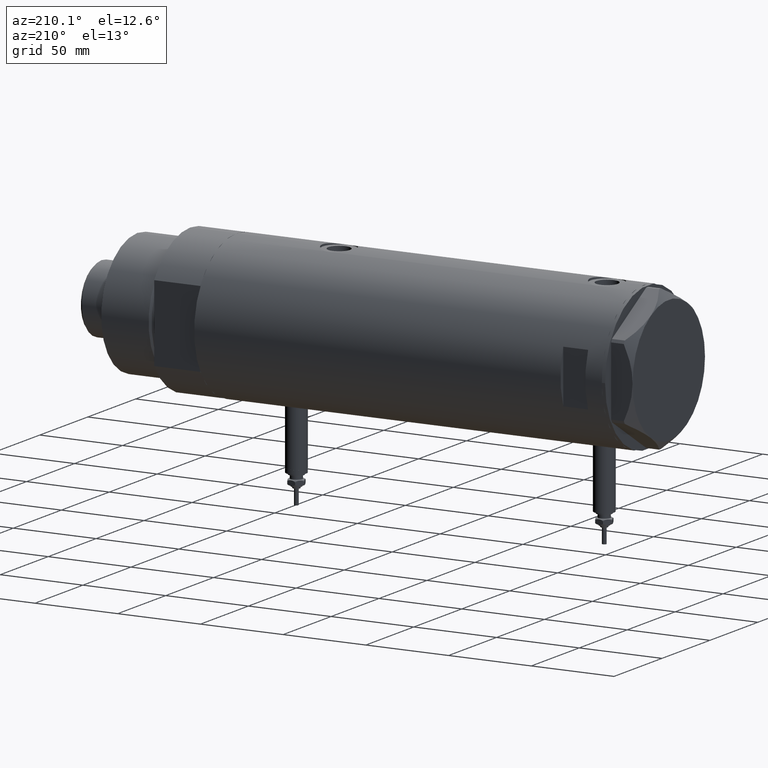
[diagram: clean part render]
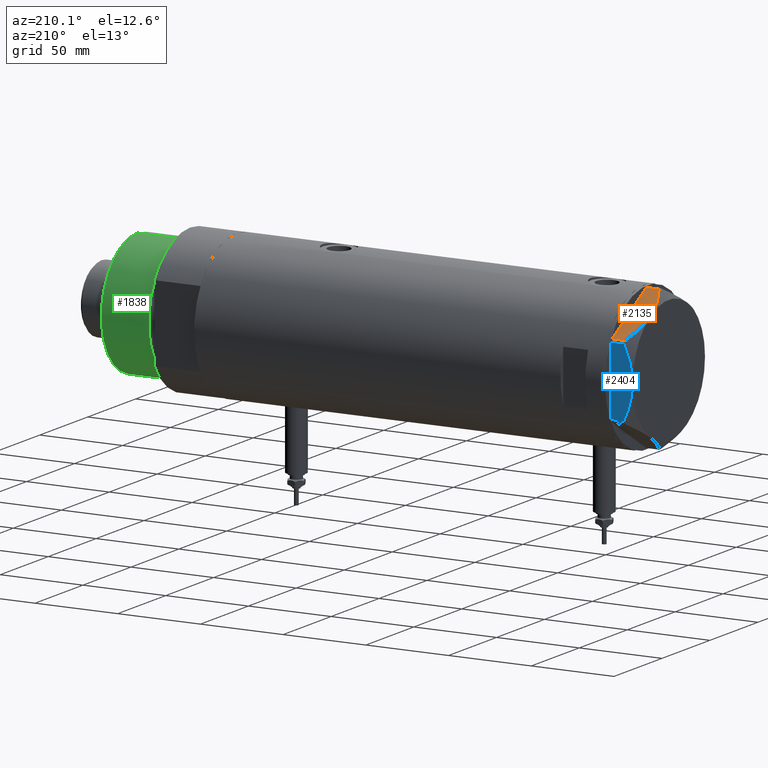
[diagram: same view with three faces highlighted in distinct colors, each labeled with its STEP entity id]
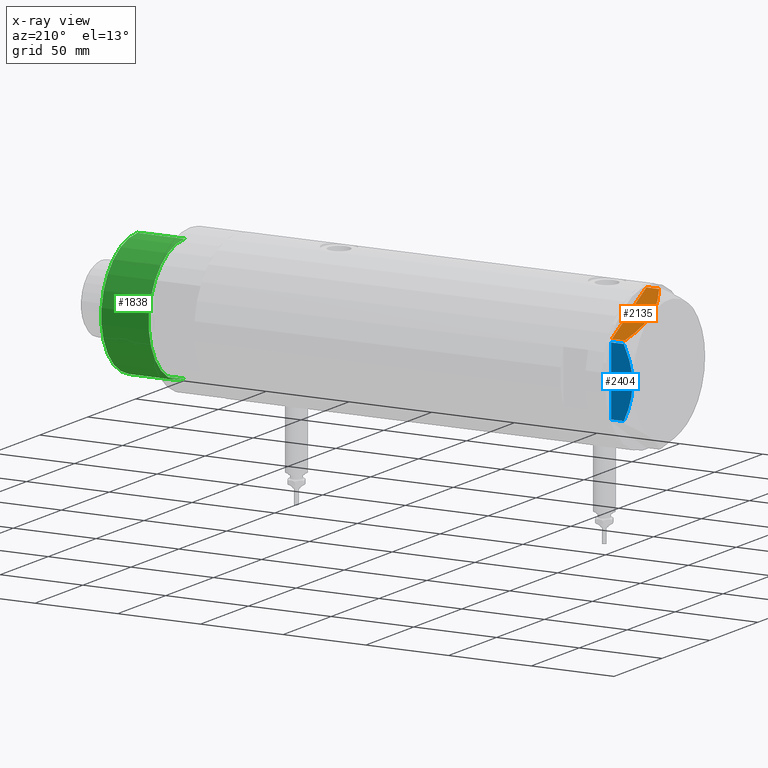
[diagram: x-ray of the same camera — body ghosted, the three highlighted faces saturated]
A machine part, auxiliary view with three faces highlighted in distinct colors.
The next image is the same camera in x-ray (body ghosted, the three faces saturated) — at least one of them is partly hidden behind the body in this view.
Their STEP definitions:

[orange] entity #2135 — the highlighted planar face has unit normal (-0, -0.5, -0.866).
#91 = VERTEX_POINT ( 'NONE', #3062 ) ;
#151 = VECTOR ( 'NONE', #5653, 1000.000000000000114 ) ;
#169 = LINE ( 'NONE', #1493, #4809 ) ;
#212 = CARTESIAN_POINT ( 'NONE',  ( 21.96683860604023764, -30.90738514137435544, 12.87183830165162846 ) ) ;
#297 = CARTESIAN_POINT ( 'NONE',  ( 36.78005154775924268, -22.35497266190964538, 7.709124142618180464 ) ) ;
#326 = CARTESIAN_POINT ( 'NONE',  ( 18.87499999999998579, -32.69245899286256218, 13.00000000000000000 ) ) ;
#359 = CARTESIAN_POINT ( 'NONE',  ( 15.73313492417777937, -34.50641564014599538, 12.83692902789789514 ) ) ;
#491 = EDGE_CURVE ( 'NONE', #1027, #2406, #3012, .T. ) ;
#704 = B_SPLINE_CURVE_WITH_KNOTS ( 'NONE', 3,
 ( #4384, #752, #212, #2604, #2146, #5837, #4472, #2574, #1661, #1572, #5864, #297 ),
 .UNSPECIFIED., .F., .F.,
 ( 4, 2, 2, 2, 2, 4 ),
 ( 0.02259271946349904886, 0.02789559809390703207, 0.03319847672431501528, 0.03584991603951900863, 0.03850135535472300197, 0.04380423398513099559 ),
 .UNSPECIFIED. ) ;
#752 = CARTESIAN_POINT ( 'NONE',  ( 20.42709085942840730, -31.79635891736482023, 12.99999999999999645 ) ) ;
#838 = CARTESIAN_POINT ( 'NONE',  ( 18.09346002772999995, -33.14368130623511632, 12.99999999999999822 ) ) ;
#1027 = VERTEX_POINT ( 'NONE', #4323 ) ;
#1042 = VERTEX_POINT ( 'NONE', #326 ) ;
#1398 = AXIS2_PLACEMENT_3D ( 'NONE', #1606, #3465, #2542 ) ;
#1493 = CARTESIAN_POINT ( 'NONE',  ( 0.9699484522385762864, -43.02994532381674020, 13.00000000000000000 ) ) ;
#1572 = CARTESIAN_POINT ( 'NONE',  ( 33.94595399727396057, -23.99123964559198541, 9.210778219601310823 ) ) ;
#1606 = CARTESIAN_POINT ( 'NONE',  ( -4.107234936485837051E-15, -43.58994532381674247, 13.00000000000000000 ) ) ;
#1634 = FACE_OUTER_BOUND ( 'NONE', #1777, .T. ) ;
#1661 = CARTESIAN_POINT ( 'NONE',  ( 31.76569840794746824, -25.25001079699180551, 10.17879673963500942 ) ) ;
#1713 = ORIENTED_EDGE ( 'NONE', *, *, #4267, .T. ) ;
#1777 = EDGE_LOOP ( 'NONE', ( #3086, #1713, #2746, #2215, #5715 ) ) ;
#1831 = CARTESIAN_POINT ( 'NONE',  ( 11.12401302890051191, -37.16749340711212568, 11.98878493998158312 ) ) ;
#1874 = LINE ( 'NONE', #3791, #151 ) ;
#2106 = EDGE_CURVE ( 'NONE', #91, #1027, #1874, .T. ) ;
#2135 = ADVANCED_FACE ( 'NONE', ( #1634 ), #3920, .F. ) ;
#2146 = CARTESIAN_POINT ( 'NONE',  ( 26.54034249379520460, -28.26687144063922830, 12.01242981158384993 ) ) ;
#2215 = ORIENTED_EDGE ( 'NONE', *, *, #491, .T. ) ;
#2227 = B_SPLINE_CURVE_WITH_KNOTS ( 'NONE', 3,
 ( #3686, #6006, #4560, #1831, #5527, #3234, #359, #5499, #838, #4977 ),
 .UNSPECIFIED., .F., .F.,
 ( 4, 2, 2, 2, 4 ),
 ( 0.001231023567492486306, 0.01191187151549576335, 0.01725229548949740177, 0.01992250747649822532, 0.02259271946349904886 ),
 .UNSPECIFIED. ) ;
#2406 = VERTEX_POINT ( 'NONE', #4172 ) ;
#2542 = DIRECTION ( 'NONE',  ( -0.8660254037844388186, -0.4999999999999997224, 0.000000000000000000 ) ) ;
#2574 = CARTESIAN_POINT ( 'NONE',  ( 31.03235934281740427, -25.67340430365192105, 10.48240969891324070 ) ) ;
#2604 = CARTESIAN_POINT ( 'NONE',  ( 25.02345495740816972, -29.14264686810265914, 12.37795492145971821 ) ) ;
#2719 = CARTESIAN_POINT ( 'NONE',  ( 0.9699484522384296259, -43.02994532381681836, 7.709124142616899711 ) ) ;
#2746 = ORIENTED_EDGE ( 'NONE', *, *, #2106, .T. ) ;
#3012 = LINE ( 'NONE', #4869, #5454 ) ;
#3062 = CARTESIAN_POINT ( 'NONE',  ( 0.9699484522385760643, -43.02994532381674020, 0.000000000000000000 ) ) ;
#3086 = ORIENTED_EDGE ( 'NONE', *, *, #5718, .F. ) ;
#3132 = VERTEX_POINT ( 'NONE', #2719 ) ;
#3234 = CARTESIAN_POINT ( 'NONE',  ( 14.95332775978646822, -34.95663751642331363, 12.73960743196719747 ) ) ;
#3465 = DIRECTION ( 'NONE',  ( -0.4999999999999997224, 0.8660254037844388186, 0.000000000000000000 ) ) ;
#3686 = CARTESIAN_POINT ( 'NONE',  ( 0.9699484522384296259, -43.02994532381681836, 7.709124142616899711 ) ) ;
#3791 = CARTESIAN_POINT ( 'NONE',  ( -4.107234936485837051E-15, -43.58994532381674247, 0.000000000000000000 ) ) ;
#3841 = DIRECTION ( 'NONE',  ( 0.000000000000000000, 0.000000000000000000, -1.000000000000000000 ) ) ;
#3920 = PLANE ( 'NONE',  #1398 ) ;
#4172 = CARTESIAN_POINT ( 'NONE',  ( 36.78005154775924268, -22.35497266190964538, 7.709124142618180464 ) ) ;
#4267 = EDGE_CURVE ( 'NONE', #3132, #91, #169, .T. ) ;
#4323 = CARTESIAN_POINT ( 'NONE',  ( 36.78005154776143115, -22.35497266190837706, 0.000000000000000000 ) ) ;
#4384 = CARTESIAN_POINT ( 'NONE',  ( 18.87499999999998579, -32.69245899286256218, 13.00000000000000000 ) ) ;
#4419 = DIRECTION ( 'NONE',  ( 0.000000000000000000, 0.000000000000000000, 1.000000000000000000 ) ) ;
#4472 = CARTESIAN_POINT ( 'NONE',  ( 29.55075297405426227, -26.52881013949038547, 11.04644118613091841 ) ) ;
#4560 = CARTESIAN_POINT ( 'NONE',  ( 6.659529780759589457, -39.74506401221886165, 10.58681170757598977 ) ) ;
#4809 = VECTOR ( 'NONE', #3841, 1000.000000000000000 ) ;
#4869 = CARTESIAN_POINT ( 'NONE',  ( 36.78005154776145247, -22.35497266190836640, 13.00000000000000000 ) ) ;
#4977 = CARTESIAN_POINT ( 'NONE',  ( 18.87499999999998579, -32.69245899286256218, 13.00000000000000000 ) ) ;
#5454 = VECTOR ( 'NONE', #4419, 1000.000000000000000 ) ;
#5499 = CARTESIAN_POINT ( 'NONE',  ( 17.30879953081281641, -33.59670525535269547, 12.96759879420491401 ) ) ;
#5527 = CARTESIAN_POINT ( 'NONE',  ( 12.63736081963744873, -36.29376165275263588, 12.35956205105863326 ) ) ;
#5605 = EDGE_CURVE ( 'NONE', #1042, #2406, #704, .T. ) ;
#5653 = DIRECTION ( 'NONE',  ( 0.8660254037844388186, 0.4999999999999997224, 0.000000000000000000 ) ) ;
#5715 = ORIENTED_EDGE ( 'NONE', *, *, #5605, .F. ) ;
#5718 = EDGE_CURVE ( 'NONE', #3132, #1042, #2227, .T. ) ;
#5837 = CARTESIAN_POINT ( 'NONE',  ( 28.80058011347544422, -26.96192264248431769, 11.30742055474504859 ) ) ;
#5864 = CARTESIAN_POINT ( 'NONE',  ( 35.37320095427428157, -23.16721823076776232, 8.489459328479206590 ) ) ;
#6006 = CARTESIAN_POINT ( 'NONE',  ( 3.783045159267917956, -41.40580318275688398, 9.269459228581803600 ) ) ;

[blue] entity #2404 — the highlighted planar face has unit normal (0, -1, -0).
#97 = PLANE ( 'NONE',  #5206 ) ;
#421 = DIRECTION ( 'NONE',  ( 0.000000000000000000, 0.000000000000000000, 1.000000000000000000 ) ) ;
#678 = CARTESIAN_POINT ( 'NONE',  ( 37.75000000000000000, 7.161343005612795132, 12.36677985830370829 ) ) ;
#785 = CARTESIAN_POINT ( 'NONE',  ( 37.75000000000000711, 1.802777518484591547E-14, 13.00000000000000000 ) ) ;
#822 = VECTOR ( 'NONE', #3160, 1000.000000000000000 ) ;
#967 = VERTEX_POINT ( 'NONE', #4803 ) ;
#1232 = CARTESIAN_POINT ( 'NONE',  ( 37.75000000000001421, -12.33018559404072256, 11.04557586999680296 ) ) ;
#1268 = CARTESIAN_POINT ( 'NONE',  ( 37.75000000000000000, 20.67497266190835958, 0.000000000000000000 ) ) ;
#1344 = CARTESIAN_POINT ( 'NONE',  ( 37.75000000000002132, -14.04433099034386778, 10.48027127384610679 ) ) ;
#1486 = VECTOR ( 'NONE', #421, 1000.000000000000000 ) ;
#1626 = CARTESIAN_POINT ( 'NONE',  ( 37.75000000000000000, 1.811728074765807994, 12.96720910498919466 ) ) ;
#1706 = LINE ( 'NONE', #4484, #1486 ) ;
#1773 = CARTESIAN_POINT ( 'NONE',  ( 37.75000000000001421, -14.89874562435959504, 10.17375260246623547 ) ) ;
#1940 = VERTEX_POINT ( 'NONE', #785 ) ;
#1949 = ORIENTED_EDGE ( 'NONE', *, *, #2654, .T. ) ;
#2067 = EDGE_CURVE ( 'NONE', #3913, #3096, #3275, .T. ) ;
#2404 = ADVANCED_FACE ( 'NONE', ( #3307 ), #97, .F. ) ;
#2533 = CARTESIAN_POINT ( 'NONE',  ( 37.75000000000000711, 0.9015134592203699615, 12.99999999999999112 ) ) ;
#2654 = EDGE_CURVE ( 'NONE', #5088, #967, #1706, .T. ) ;
#2678 = CARTESIAN_POINT ( 'NONE',  ( 37.75000000000000711, 3.611424898442247233, 12.83826937481875596 ) ) ;
#2859 = VECTOR ( 'NONE', #4291, 1000.000000000000000 ) ;
#3091 = CARTESIAN_POINT ( 'NONE',  ( 37.75000000000000711, -7.143641079404811300, 12.47474846747315347 ) ) ;
#3096 = VERTEX_POINT ( 'NONE', #4418 ) ;
#3160 = DIRECTION ( 'NONE',  ( -4.775569585389645902E-16, 1.000000000000000000, 0.000000000000000000 ) ) ;
#3202 = CARTESIAN_POINT ( 'NONE',  ( 37.75000000000002132, -11.46926194450820802, 11.30493988086502632 ) ) ;
#3275 = LINE ( 'NONE', #4624, #2859 ) ;
#3307 = FACE_OUTER_BOUND ( 'NONE', #4438, .T. ) ;
#3403 = ORIENTED_EDGE ( 'NONE', *, *, #5238, .T. ) ;
#3420 = CARTESIAN_POINT ( 'NONE',  ( 37.75000000000000711, 12.34877760086738441, 11.06613894200179260 ) ) ;
#3456 = CARTESIAN_POINT ( 'NONE',  ( 37.75000000000000711, 8.905753572404311313, 11.99914237172014353 ) ) ;
#3483 = CARTESIAN_POINT ( 'NONE',  ( 37.75000000000000000, 19.05362936076134162, 8.470554105526112210 ) ) ;
#3634 = CARTESIAN_POINT ( 'NONE',  ( 37.75000000000000000, -3.615248338761618552, 12.99999999999998934 ) ) ;
#3684 = CARTESIAN_POINT ( 'NONE',  ( 37.75000000000001421, -19.06473524669325315, 8.482612457517156201 ) ) ;
#3797 = DIRECTION ( 'NONE',  ( 4.775569585389645902E-16, -1.000000000000000000, 0.000000000000000000 ) ) ;
#3852 = CARTESIAN_POINT ( 'NONE',  ( 37.75000000000000711, 1.802777518484591547E-14, 13.00000000000000000 ) ) ;
#3913 = VERTEX_POINT ( 'NONE', #5880 ) ;
#3923 = ORIENTED_EDGE ( 'NONE', *, *, #4754, .F. ) ;
#3944 = CARTESIAN_POINT ( 'NONE',  ( 37.75000000000000711, 16.56731140591521978, 9.531835068628826235 ) ) ;
#4065 = ORIENTED_EDGE ( 'NONE', *, *, #4530, .F. ) ;
#4291 = DIRECTION ( 'NONE',  ( 0.000000000000000000, 0.000000000000000000, -1.000000000000000000 ) ) ;
#4296 = DIRECTION ( 'NONE',  ( -1.000000000000000000, -4.775569585389645902E-16, 0.000000000000000000 ) ) ;
#4418 = CARTESIAN_POINT ( 'NONE',  ( 37.75000000000002132, -20.67497266190835958, 0.000000000000000000 ) ) ;
#4423 = LINE ( 'NONE', #5819, #822 ) ;
#4438 = EDGE_LOOP ( 'NONE', ( #4065, #5545, #3403, #1949, #3923 ) ) ;
#4484 = CARTESIAN_POINT ( 'NONE',  ( 37.75000000000000000, 20.67497266190835958, 13.00000000000000000 ) ) ;
#4490 = B_SPLINE_CURVE_WITH_KNOTS ( 'NONE', 3,
 ( #5945, #3684, #4501, #1773, #1344, #1232, #3202, #3091, #3634, #4948 ),
 .UNSPECIFIED., .F., .F.,
 ( 4, 2, 2, 2, 4 ),
 ( 0.05601050456479946676, 0.06138217239161374711, 0.06406800630502089422, 0.06675384021842803439, 0.07749717587205659508 ),
 .UNSPECIFIED. ) ;
#4501 = CARTESIAN_POINT ( 'NONE',  ( 37.75000000000002132, -17.42329546264822682, 9.202188366597432889 ) ) ;
#4530 = EDGE_CURVE ( 'NONE', #3913, #1940, #4490, .T. ) ;
#4624 = CARTESIAN_POINT ( 'NONE',  ( 37.75000000000002132, -20.67497266190835958, 13.00000000000000000 ) ) ;
#4752 = CARTESIAN_POINT ( 'NONE',  ( 37.75000000000002132, -21.79497266190837124, 13.00000000000000000 ) ) ;
#4754 = EDGE_CURVE ( 'NONE', #1940, #967, #5935, .T. ) ;
#4803 = CARTESIAN_POINT ( 'NONE',  ( 37.75000000000000000, 20.67497266190835958, 7.709124142616976094 ) ) ;
#4853 = CARTESIAN_POINT ( 'NONE',  ( 37.75000000000000711, 4.503994958793054337, 12.74237531377021604 ) ) ;
#4948 = CARTESIAN_POINT ( 'NONE',  ( 37.75000000000000711, 1.802777518484591547E-14, 13.00000000000000000 ) ) ;
#5088 = VERTEX_POINT ( 'NONE', #1268 ) ;
#5206 = AXIS2_PLACEMENT_3D ( 'NONE', #4752, #4296, #3797 ) ;
#5238 = EDGE_CURVE ( 'NONE', #3096, #5088, #4423, .T. ) ;
#5314 = CARTESIAN_POINT ( 'NONE',  ( 37.75000000000000000, 20.67497266190835958, 7.709124142616976094 ) ) ;
#5545 = ORIENTED_EDGE ( 'NONE', *, *, #2067, .T. ) ;
#5711 = CARTESIAN_POINT ( 'NONE',  ( 37.75000000000000000, 19.86857906850807964, 8.096480699986591034 ) ) ;
#5768 = CARTESIAN_POINT ( 'NONE',  ( 37.75000000000000000, 14.04742653794396823, 10.50092616350622166 ) ) ;
#5802 = CARTESIAN_POINT ( 'NONE',  ( 37.75000000000000000, 17.40390235304479560, 9.187919079516760235 ) ) ;
#5819 = CARTESIAN_POINT ( 'NONE',  ( 37.75000000000002132, -21.79497266190837124, 0.000000000000000000 ) ) ;
#5880 = CARTESIAN_POINT ( 'NONE',  ( 37.75000000000002132, -20.67497266190837024, 7.709124142616982311 ) ) ;
#5935 = B_SPLINE_CURVE_WITH_KNOTS ( 'NONE', 3,
 ( #3852, #2533, #1626, #2678, #4853, #678, #3456, #3420, #5768, #3944, #5802, #3483, #5711, #5314 ),
 .UNSPECIFIED., .F., .F.,
 ( 4, 2, 2, 2, 2, 2, 4 ),
 ( 0.07749717587205659508, 0.08017617902235897598, 0.08285518217266137075, 0.08821318847326614643, 0.09357119477387092210, 0.09625019792417330300, 0.09892920107447569777 ),
 .UNSPECIFIED. ) ;
#5945 = CARTESIAN_POINT ( 'NONE',  ( 37.75000000000002132, -20.67497266190837024, 7.709124142616982311 ) ) ;

[green] entity #1838 — the highlighted cylindrical surface (partial cylindrical patch) has radius 37.5 mm, axis along (-1, -0, 0).
#11 = VECTOR ( 'NONE', #3379, 1000.000000000000000 ) ;
#73 = CARTESIAN_POINT ( 'NONE',  ( -37.50000000000000711, 0.000000000000000000, 59.89999999999999147 ) ) ;
#277 = LINE ( 'NONE', #3871, #11 ) ;
#349 = AXIS2_PLACEMENT_3D ( 'NONE', #5712, #1991, #533 ) ;
#395 = EDGE_CURVE ( 'NONE', #853, #4779, #277, .T. ) ;
#417 = CARTESIAN_POINT ( 'NONE',  ( 37.50000000000000711, 4.592425496802575156E-15, 59.89999999999999147 ) ) ;
#533 = DIRECTION ( 'NONE',  ( 1.000000000000000000, 0.000000000000000000, 0.000000000000000000 ) ) ;
#615 = AXIS2_PLACEMENT_3D ( 'NONE', #1528, #3313, #2955 ) ;
#738 = DIRECTION ( 'NONE',  ( 1.000000000000000000, 0.000000000000000000, 0.000000000000000000 ) ) ;
#853 = VERTEX_POINT ( 'NONE', #417 ) ;
#1101 = CYLINDRICAL_SURFACE ( 'NONE', #615, 37.50000000000000711 ) ;
#1528 = CARTESIAN_POINT ( 'NONE',  ( 0.000000000000000000, 0.000000000000000000, 59.89999999999999147 ) ) ;
#1557 = FACE_OUTER_BOUND ( 'NONE', #4019, .T. ) ;
#1734 = DIRECTION ( 'NONE',  ( 0.000000000000000000, 0.000000000000000000, 1.000000000000000000 ) ) ;
#1838 = ADVANCED_FACE ( 'NONE', ( #1557 ), #1101, .T. ) ;
#1991 = DIRECTION ( 'NONE',  ( -0.000000000000000000, -0.000000000000000000, 1.000000000000000000 ) ) ;
#2078 = CIRCLE ( 'NONE', #3628, 37.50000000000000711 ) ;
#2437 = CARTESIAN_POINT ( 'NONE',  ( -37.50000000000000711, 0.000000000000000000, 59.89999999999999147 ) ) ;
#2540 = CARTESIAN_POINT ( 'NONE',  ( -37.50000000000000711, 0.000000000000000000, 31.27384048104054415 ) ) ;
#2955 = DIRECTION ( 'NONE',  ( -1.000000000000000000, 0.000000000000000000, 0.000000000000000000 ) ) ;
#3313 = DIRECTION ( 'NONE',  ( -0.000000000000000000, -0.000000000000000000, -1.000000000000000000 ) ) ;
#3379 = DIRECTION ( 'NONE',  ( -0.000000000000000000, -0.000000000000000000, -1.000000000000000000 ) ) ;
#3628 = AXIS2_PLACEMENT_3D ( 'NONE', #4061, #1734, #738 ) ;
#3871 = CARTESIAN_POINT ( 'NONE',  ( 37.50000000000000711, 4.592425496802575156E-15, 59.89999999999999147 ) ) ;
#3960 = ORIENTED_EDGE ( 'NONE', *, *, #395, .T. ) ;
#3993 = EDGE_CURVE ( 'NONE', #853, #4265, #2078, .T. ) ;
#4019 = EDGE_LOOP ( 'NONE', ( #5611, #3960, #5619, #4987 ) ) ;
#4061 = CARTESIAN_POINT ( 'NONE',  ( 0.000000000000000000, 0.000000000000000000, 59.89999999999999147 ) ) ;
#4265 = VERTEX_POINT ( 'NONE', #2437 ) ;
#4387 = VERTEX_POINT ( 'NONE', #2540 ) ;
#4779 = VERTEX_POINT ( 'NONE', #5082 ) ;
#4815 = DIRECTION ( 'NONE',  ( -0.000000000000000000, -0.000000000000000000, -1.000000000000000000 ) ) ;
#4961 = EDGE_CURVE ( 'NONE', #4265, #4387, #5757, .T. ) ;
#4987 = ORIENTED_EDGE ( 'NONE', *, *, #4961, .F. ) ;
#5082 = CARTESIAN_POINT ( 'NONE',  ( 37.50000000000000711, 4.592425496802575156E-15, 31.27384048104054415 ) ) ;
#5611 = ORIENTED_EDGE ( 'NONE', *, *, #3993, .F. ) ;
#5619 = ORIENTED_EDGE ( 'NONE', *, *, #5860, .T. ) ;
#5712 = CARTESIAN_POINT ( 'NONE',  ( 0.000000000000000000, 0.000000000000000000, 31.27384048104054415 ) ) ;
#5757 = LINE ( 'NONE', #73, #5964 ) ;
#5860 = EDGE_CURVE ( 'NONE', #4779, #4387, #5978, .T. ) ;
#5964 = VECTOR ( 'NONE', #4815, 1000.000000000000000 ) ;
#5978 = CIRCLE ( 'NONE', #349, 37.50000000000000711 ) ;